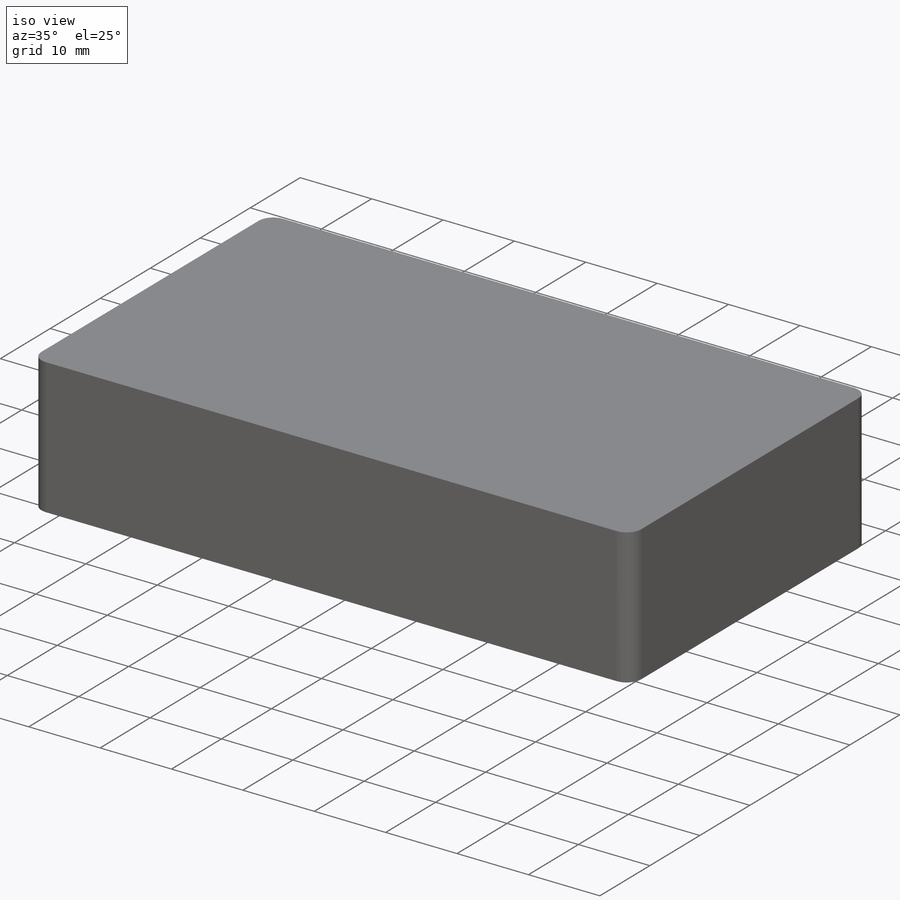
[diagram: iso view]
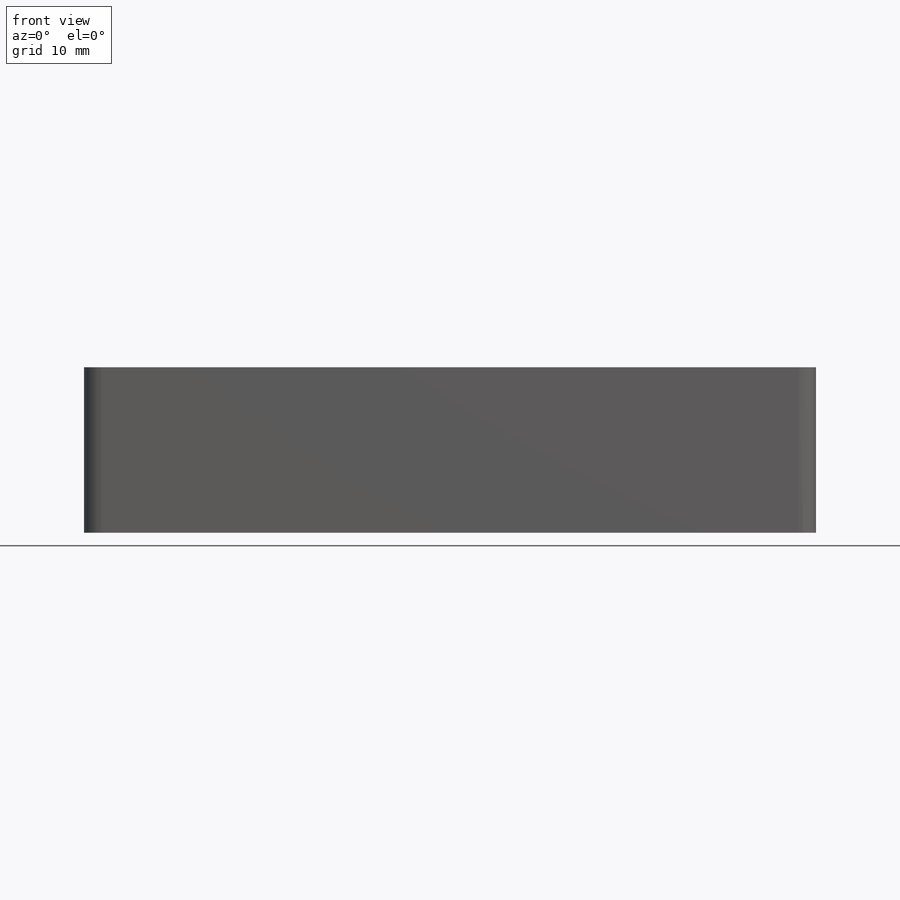
[diagram: front view]
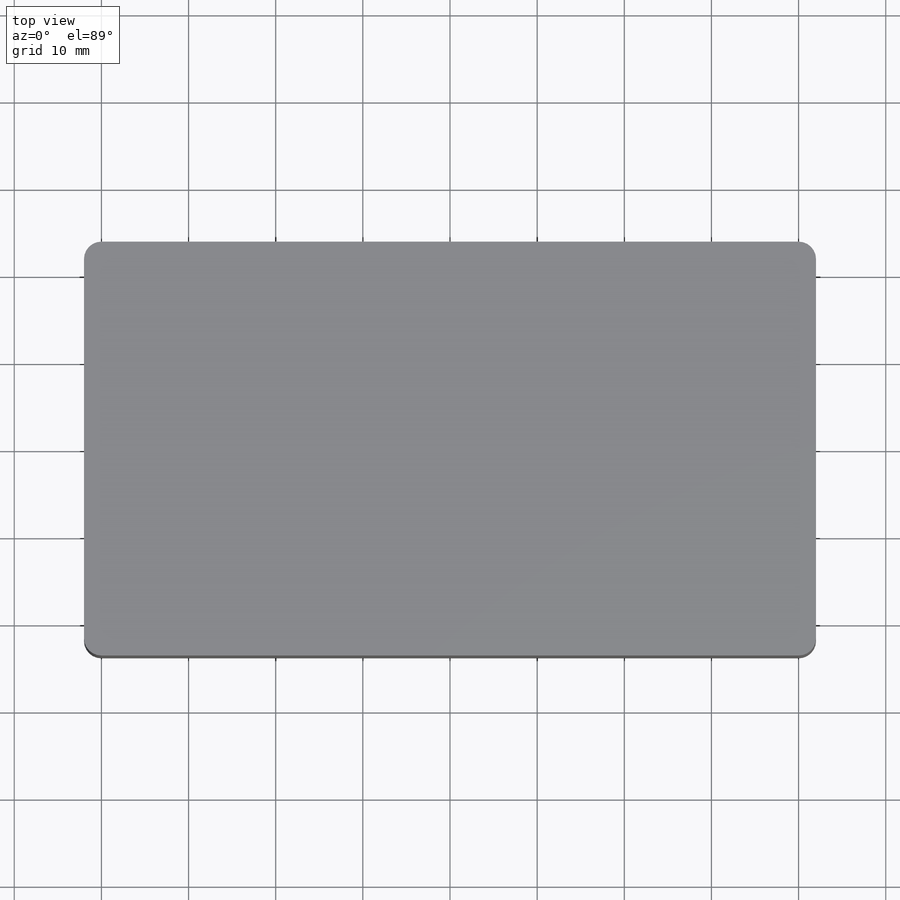
[diagram: top view]
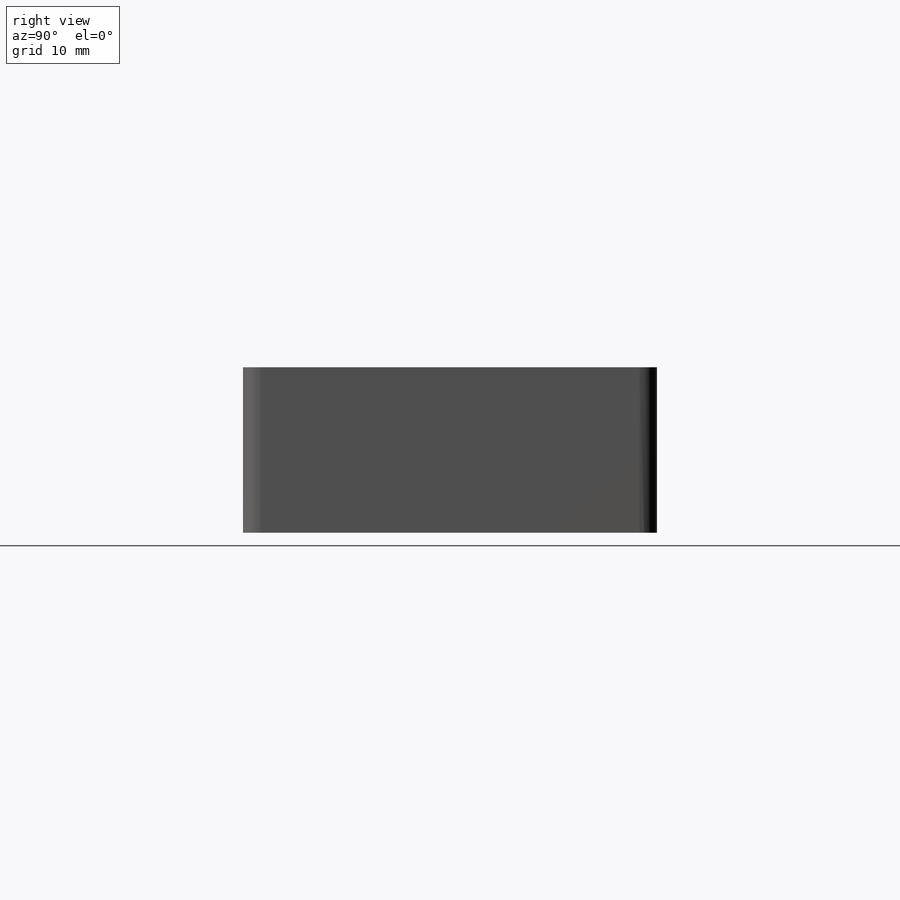
[diagram: right view]
SOLIDWORKS PART (.sldprt)
format: sldprt  version: not decoded by parser v0  size: 650,240 bytes
history: native  units: mm
features: sketch x5, fillet x5, cut_extrude x2, pattern_linear x2, material x1, extrude x1 (+14 scaffold rows collapsed)
feature tree (30):
  scaffold x14  (default folders/planes/origin — collapsed)
  material  "Material <not specified>"
  sketch  "Sketch4"  dims[D1=47.5mm]
  extrude  "Extrude3"  Depth=19mm
  fillet  "Fillet4"  Radius=2mm
  sketch  "Sketch5"  dims[D1=32.5mm]
  cut_extrude  "Extrude4"  Depth=8mm
  fillet  "Fillet6"  Radius=2mm
  fillet  "Fillet7"  Radius=2mm
  fillet  "Fillet8"  Radius=2mm
  fillet  "Fillet9"  Radius=2mm
  sketch  "Sketch6"  dims[D1=1.0mm]
  cut_extrude  "Extrude8"  Depth=1mm
  sketch  "Sketch7"
  pattern_linear  "LPattern3"  Count1=21 Count2=1 Spacing1=3.25mm Spacing2=50mm
  sketch  "Sketch8"
  pattern_linear  "LPattern4"  Count1=9 Count2=1 Spacing1=3.4mm Spacing2=50mm
decode coverage: 13 of 15 modeling features carry decoded parameters
note: suppression state not decoded; provenance and decode notes live in map.json
